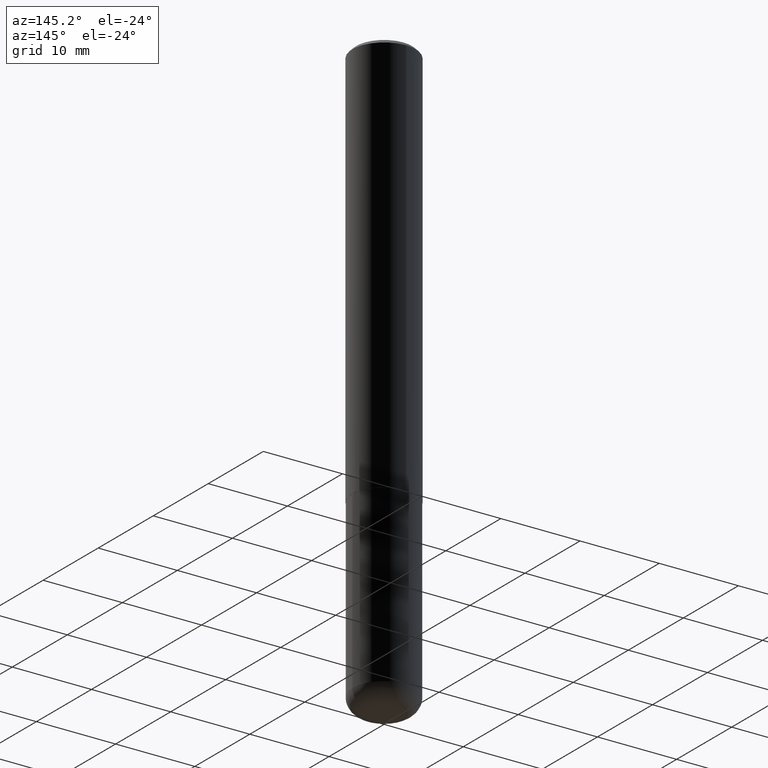
[diagram: clean part render]
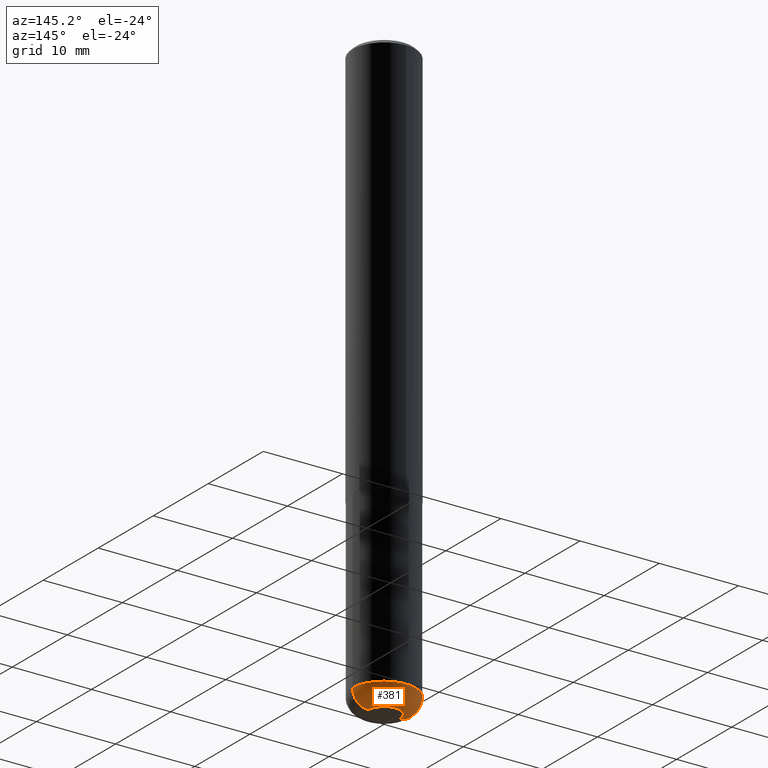
[diagram: same view with one face highlighted and labeled with its STEP entity id]
A machine part, auxiliary view. The second image highlights one B-rep face of the part: STEP entity #381.
In plain terms, the highlighted toroidal blend (fillet) surface has major radius 2.0015 mm and minor (blend) radius 1.999 mm.
Its self-contained STEP definition (entity closure, byte-faithful):
#5 = DIRECTION ( 'NONE',  ( 1.000000000000000000, -6.982962677686263555E-15, 4.883557194083111780E-29 ) ) ;
#31 = DIRECTION ( 'NONE',  ( -2.445468806185136597E-29, 3.491481338843145583E-15, 1.000000000000000000 ) ) ;
#43 = TOROIDAL_SURFACE ( 'NONE', #101, 0.07879999999999999505, 0.07869999999999995055 ) ;
#49 = EDGE_CURVE ( 'NONE', #85, #236, #189, .T. ) ;
#77 = DIRECTION ( 'NONE',  ( 7.105427357601001859E-15, 1.000000000000000000, -3.491481338843145583E-15 ) ) ;
#85 = VERTEX_POINT ( 'NONE', #385 ) ;
#101 = AXIS2_PLACEMENT_3D ( 'NONE', #267, #364, #5 ) ;
#104 = CARTESIAN_POINT ( 'NONE',  ( 0.07879999999999999505, -1.058512397497076362E-14, -2.874099999999999877 ) ) ;
#107 = DIRECTION ( 'NONE',  ( -6.982962677686266711E-15, -1.000000000000000000, 3.491481338843145583E-15 ) ) ;
#110 = ORIENTED_EDGE ( 'NONE', *, *, #49, .F. ) ;
#120 = CARTESIAN_POINT ( 'NONE',  ( 0.07880000000000000893, -1.085990355633771696E-14, -2.952799999999999869 ) ) ;
#121 = AXIS2_PLACEMENT_3D ( 'NONE', #363, #77, #300 ) ;
#140 = DIRECTION ( 'NONE',  ( 1.000000000000000000, -6.982962677686273021E-15, 0.000000000000000000 ) ) ;
#141 = AXIS2_PLACEMENT_3D ( 'NONE', #320, #31, #157 ) ;
#151 = VERTEX_POINT ( 'NONE', #120 ) ;
#157 = DIRECTION ( 'NONE',  ( 1.000000000000000000, -6.982962677686261977E-15, 0.000000000000000000 ) ) ;
#184 = CIRCLE ( 'NONE', #225, 0.07880000000000000893 ) ;
#188 = DIRECTION ( 'NONE',  ( -2.445468806185136597E-29, 3.491481338843145583E-15, 1.000000000000000000 ) ) ;
#189 = CIRCLE ( 'NONE', #141, 0.1575000000000000011 ) ;
#219 = CIRCLE ( 'NONE', #350, 0.07869999999999996443 ) ;
#225 = AXIS2_PLACEMENT_3D ( 'NONE', #293, #188, #415 ) ;
#236 = VERTEX_POINT ( 'NONE', #373 ) ;
#241 = ORIENTED_EDGE ( 'NONE', *, *, #291, .T. ) ;
#245 = EDGE_LOOP ( 'NONE', ( #241, #382, #110, #401 ) ) ;
#267 = CARTESIAN_POINT ( 'NONE',  ( 7.028521895856700897E-29, -1.003486651596908519E-14, -2.874099999999999877 ) ) ;
#289 = CIRCLE ( 'NONE', #121, 0.07869999999999996443 ) ;
#291 = EDGE_CURVE ( 'NONE', #151, #406, #184, .T. ) ;
#293 = CARTESIAN_POINT ( 'NONE',  ( 7.220980290903470182E-29, -1.030964609733603853E-14, -2.952799999999999869 ) ) ;
#297 = CARTESIAN_POINT ( 'NONE',  ( -0.07880000000000000893, -9.332750064352005228E-15, -2.952799999999999869 ) ) ;
#300 = DIRECTION ( 'NONE',  ( -1.000000000000000000, 7.105427357600995548E-15, 0.000000000000000000 ) ) ;
#320 = CARTESIAN_POINT ( 'NONE',  ( 7.028521895856700897E-29, -1.003486651596908519E-14, -2.874099999999999877 ) ) ;
#350 = AXIS2_PLACEMENT_3D ( 'NONE', #104, #107, #140 ) ;
#363 = CARTESIAN_POINT ( 'NONE',  ( -0.07879999999999999505, -9.474958840190126376E-15, -2.874099999999999877 ) ) ;
#364 = DIRECTION ( 'NONE',  ( -2.445468806185136597E-29, 3.491481338843145583E-15, 1.000000000000000000 ) ) ;
#373 = CARTESIAN_POINT ( 'NONE',  ( -0.1574999999999999456, -8.915761707146927585E-15, -2.874099999999999877 ) ) ;
#380 = EDGE_CURVE ( 'NONE', #151, #85, #219, .T. ) ;
#381 = ADVANCED_FACE ( 'NONE', ( #389 ), #43, .T. ) ;
#382 = ORIENTED_EDGE ( 'NONE', *, *, #413, .T. ) ;
#385 = CARTESIAN_POINT ( 'NONE',  ( 0.1574999999999999456, -1.113468313770467030E-14, -2.874099999999999877 ) ) ;
#389 = FACE_OUTER_BOUND ( 'NONE', #245, .T. ) ;
#401 = ORIENTED_EDGE ( 'NONE', *, *, #380, .F. ) ;
#406 = VERTEX_POINT ( 'NONE', #297 ) ;
#413 = EDGE_CURVE ( 'NONE', #406, #236, #289, .T. ) ;
#415 = DIRECTION ( 'NONE',  ( 1.000000000000000000, -6.982962677686277755E-15, 0.000000000000000000 ) ) ;